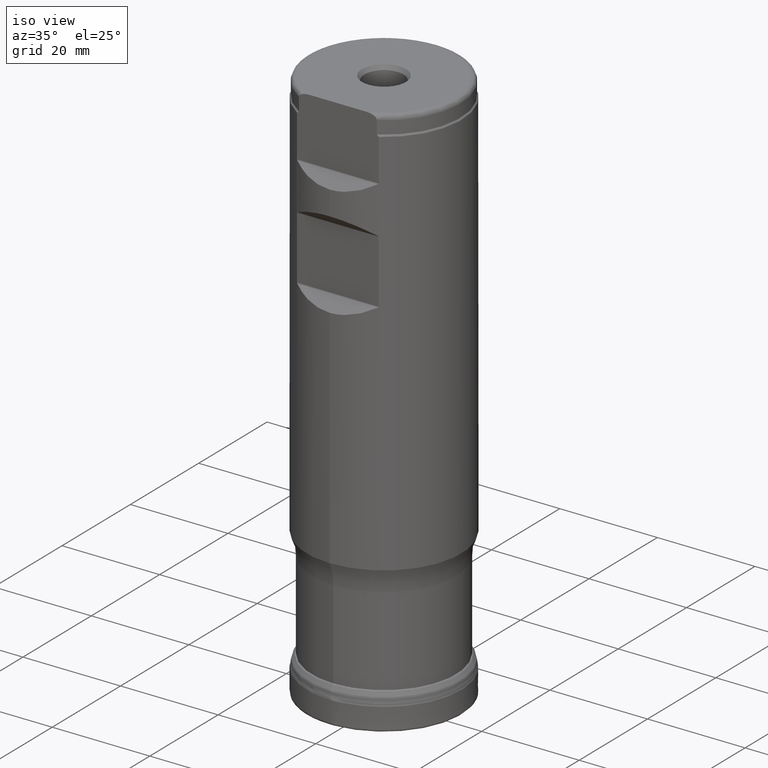
[diagram: clean part render]
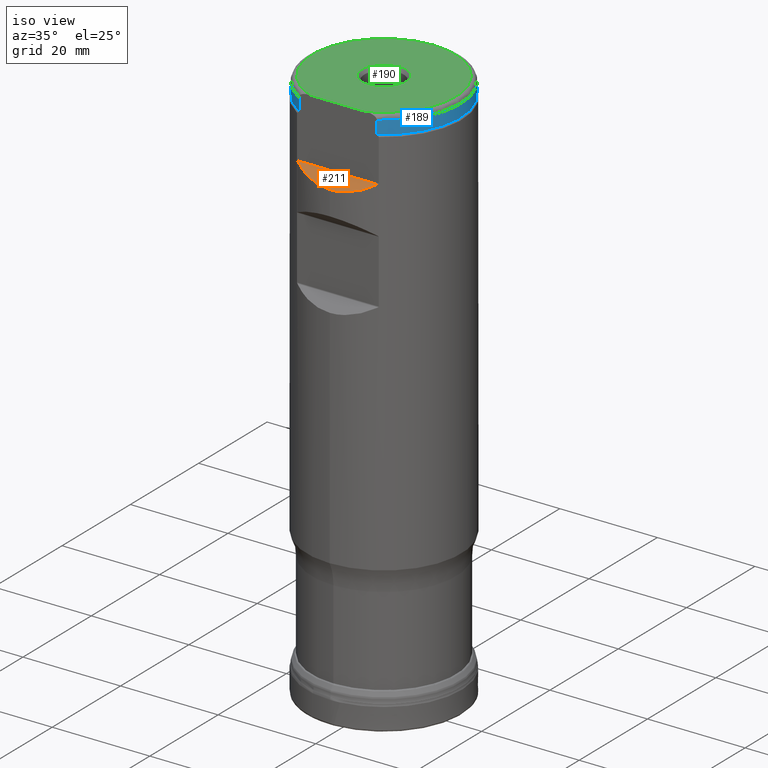
[diagram: same view with three faces highlighted in distinct colors, each labeled with its STEP entity id]
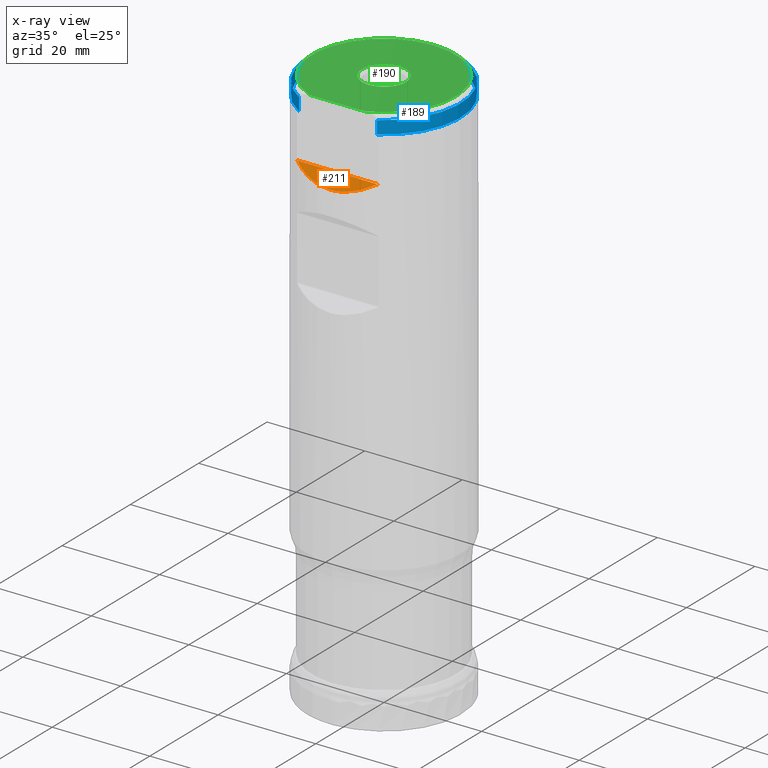
[diagram: x-ray of the same camera — body ghosted, the three highlighted faces saturated]
A machine part, iso view with three faces highlighted in distinct colors.
The next image is the same camera in x-ray (body ghosted, the three faces saturated) — at least one of them is partly hidden behind the body in this view.
Their STEP definitions:

[orange] entity #211 — the highlighted planar face has unit normal (0, -0.7071, 0.7071).
#165=PLANE('',#859);
#181=FACE_OUTER_BOUND('',#411,.T.);
#211=ADVANCED_FACE('',(#181),#165,.T.);
#411=EDGE_LOOP('',(#576,#577));
#467=LINE('',#1472,#486);
#486=VECTOR('',#990,1.);
#499=ELLIPSE('',#815,22.4506403026729,15.875);
#576=ORIENTED_EDGE('',*,*,#738,.T.);
#577=ORIENTED_EDGE('',*,*,#710,.F.);
#646=VERTEX_POINT('',#1356);
#650=VERTEX_POINT('',#1376);
#710=EDGE_CURVE('',#650,#646,#499,.T.);
#738=EDGE_CURVE('',#650,#646,#467,.T.);
#815=AXIS2_PLACEMENT_3D('',#1377,#900,#901);
#859=AXIS2_PLACEMENT_3D('',#1474,#993,#994);
#900=DIRECTION('',(-8.28344032153662E-16,0.707106781186547,-0.707106781186548));
#901=DIRECTION('',(-8.28344032153661E-16,0.707106781186548,0.707106781186547));
#990=DIRECTION('',(-1.,1.37230767120917E-30,1.17145536458252E-15));
#993=DIRECTION('',(8.28344032153662E-16,-0.707106781186547,0.707106781186548));
#994=DIRECTION('',(8.29197821516914E-16,0.707106781186548,0.707106781186547));
#1356=CARTESIAN_POINT('',(-8.22968557485393,-13.5752679656439,101.512132034356));
#1376=CARTESIAN_POINT('',(8.22968557485393,-13.5752679656439,101.512132034356));
#1377=CARTESIAN_POINT('',(0.,1.34819752125855E-13,115.0874));
#1472=CARTESIAN_POINT('',(-17.5,-13.5752679656439,101.512132034356));
#1474=CARTESIAN_POINT('',(-17.5,-13.4873999999999,101.6));

[blue] entity #189 — the highlighted cylindrical surface (partial cylindrical patch) has radius 15.675 mm, axis along (0, 0, 1).
#177=FACE_OUTER_BOUND('',#373,.T.);
#189=ADVANCED_FACE('',(#177),#239,.T.);
#239=CYLINDRICAL_SURFACE('',#820,15.675);
#248=CIRCLE('',#817,15.675);
#249=CIRCLE('',#819,15.675);
#373=EDGE_LOOP('',(#519,#520,#521,#522));
#463=LINE('',#1394,#482);
#464=LINE('',#1395,#483);
#482=VECTOR('',#910,1.);
#483=VECTOR('',#911,1.);
#519=ORIENTED_EDGE('',*,*,#714,.T.);
#520=ORIENTED_EDGE('',*,*,#715,.T.);
#521=ORIENTED_EDGE('',*,*,#712,.T.);
#522=ORIENTED_EDGE('',*,*,#716,.T.);
#651=VERTEX_POINT('',#1383);
#652=VERTEX_POINT('',#1385);
#653=VERTEX_POINT('',#1392);
#654=VERTEX_POINT('',#1393);
#712=EDGE_CURVE('',#652,#651,#248,.T.);
#714=EDGE_CURVE('',#653,#654,#249,.T.);
#715=EDGE_CURVE('',#654,#652,#463,.T.);
#716=EDGE_CURVE('',#651,#653,#464,.T.);
#817=AXIS2_PLACEMENT_3D('',#1384,#904,#905);
#819=AXIS2_PLACEMENT_3D('',#1391,#908,#909);
#820=AXIS2_PLACEMENT_3D('',#1396,#912,#913);
#904=DIRECTION('',(0.,1.17145536458252E-15,1.));
#905=DIRECTION('',(0.,-1.,8.85345314693107E-16));
#908=DIRECTION('',(0.,-1.17145536458252E-15,-1.));
#909=DIRECTION('',(0.,-1.,8.85345314693107E-16));
#910=DIRECTION('',(0.,-1.17145536458252E-15,-1.));
#911=DIRECTION('',(0.,1.17145536458252E-15,1.));
#912=DIRECTION('',(0.,1.17145536458252E-15,1.));
#913=DIRECTION('',(0.,-1.,1.17145536458252E-15));
#1383=CARTESIAN_POINT('',(-7.98721893026603,-13.4873999999999,110.646410161514));
#1384=CARTESIAN_POINT('',(0.,1.29617330755504E-13,110.646410161514));
#1385=CARTESIAN_POINT('',(7.98721893026603,-13.4873999999999,110.646410161514));
#1391=CARTESIAN_POINT('',(0.,1.327258928072E-13,113.3));
#1392=CARTESIAN_POINT('',(-7.9872189302887,-13.4873999999999,113.299999999989));
#1393=CARTESIAN_POINT('',(7.98721893026603,-13.4873999999999,113.3));
#1394=CARTESIAN_POINT('',(7.98721893026603,-13.4874,1.57998870842703E-14));
#1395=CARTESIAN_POINT('',(-7.98721893026603,-13.4874,1.57998870842703E-14));
#1396=CARTESIAN_POINT('',(0.,0.,0.));

[green] entity #190 — the highlighted planar face has unit normal (0, 0, 1).
#161=PLANE('',#823);
#190=ADVANCED_FACE('',(#291,#292),#161,.T.);
#250=CIRCLE('',#821,4.5);
#251=CIRCLE('',#822,14.675);
#291=FACE_BOUND('',#374,.T.);
#292=FACE_BOUND('',#375,.T.);
#374=EDGE_LOOP('',(#523));
#375=EDGE_LOOP('',(#524,#525));
#465=LINE('',#1402,#484);
#484=VECTOR('',#918,1.);
#523=ORIENTED_EDGE('',*,*,#717,.T.);
#524=ORIENTED_EDGE('',*,*,#718,.T.);
#525=ORIENTED_EDGE('',*,*,#719,.T.);
#655=VERTEX_POINT('',#1398);
#656=VERTEX_POINT('',#1400);
#657=VERTEX_POINT('',#1401);
#717=EDGE_CURVE('',#655,#655,#250,.T.);
#718=EDGE_CURVE('',#656,#657,#251,.T.);
#719=EDGE_CURVE('',#657,#656,#465,.T.);
#821=AXIS2_PLACEMENT_3D('',#1397,#914,#915);
#822=AXIS2_PLACEMENT_3D('',#1399,#916,#917);
#823=AXIS2_PLACEMENT_3D('',#1403,#919,#920);
#914=DIRECTION('',(0.,-1.17145536458252E-15,-1.));
#915=DIRECTION('',(0.,-1.,0.));
#916=DIRECTION('',(0.,1.17145536458252E-15,1.));
#917=DIRECTION('',(0.,-1.,9.45675489459248E-16));
#918=DIRECTION('',(1.,-1.37230767120917E-30,-1.17145536458252E-15));
#919=DIRECTION('',(0.,1.17145536458252E-15,1.));
#920=DIRECTION('',(0.,-1.,1.16573417585641E-15));
#1397=CARTESIAN_POINT('',(0.,1.33897348171782E-13,114.3));
#1398=CARTESIAN_POINT('',(0.,-4.49999999999987,114.3));
#1399=CARTESIAN_POINT('',(0.,1.33897348171782E-13,114.3));
#1400=CARTESIAN_POINT('',(5.78322282468844,-13.4873999999999,114.3));
#1401=CARTESIAN_POINT('',(-5.78322282468865,-13.4873999999999,114.3));
#1402=CARTESIAN_POINT('',(-17.5,-13.4873999999999,114.3));
#1403=CARTESIAN_POINT('',(0.,1.33897348171782E-13,114.3));